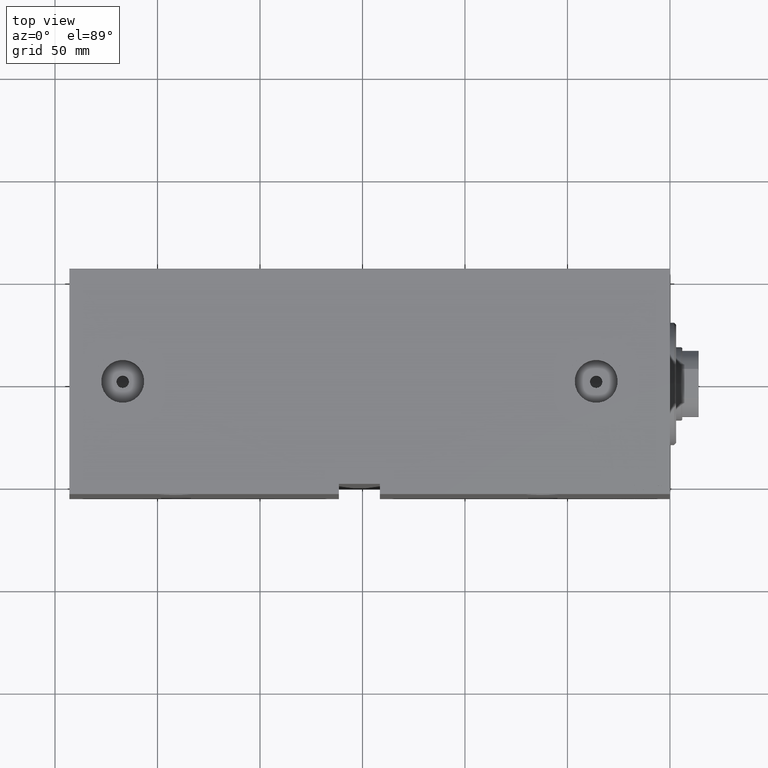
[diagram: clean part render]
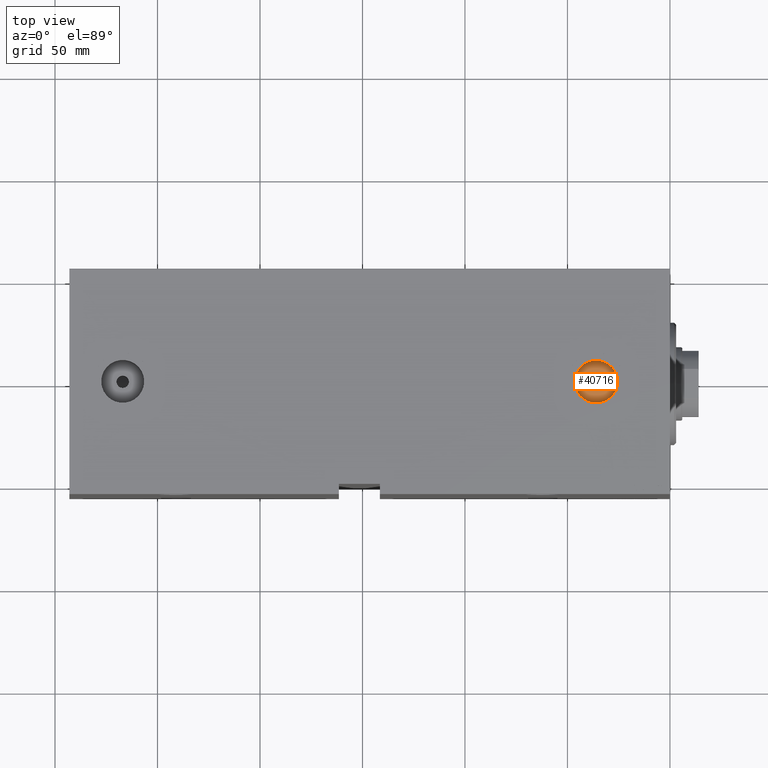
[diagram: same view with one face highlighted and labeled with its STEP entity id]
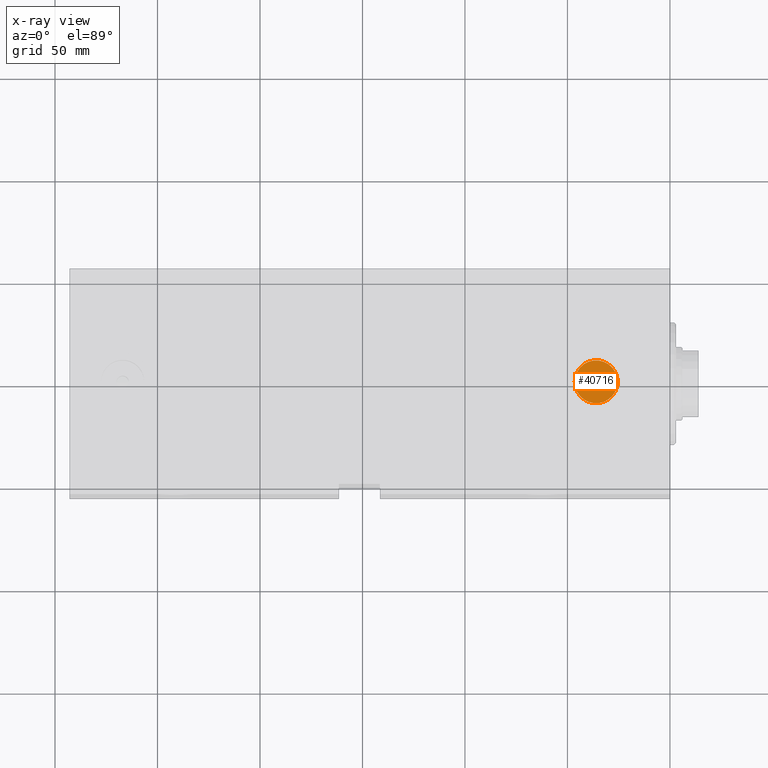
[diagram: x-ray of the same camera — body ghosted, the highlighted face saturated]
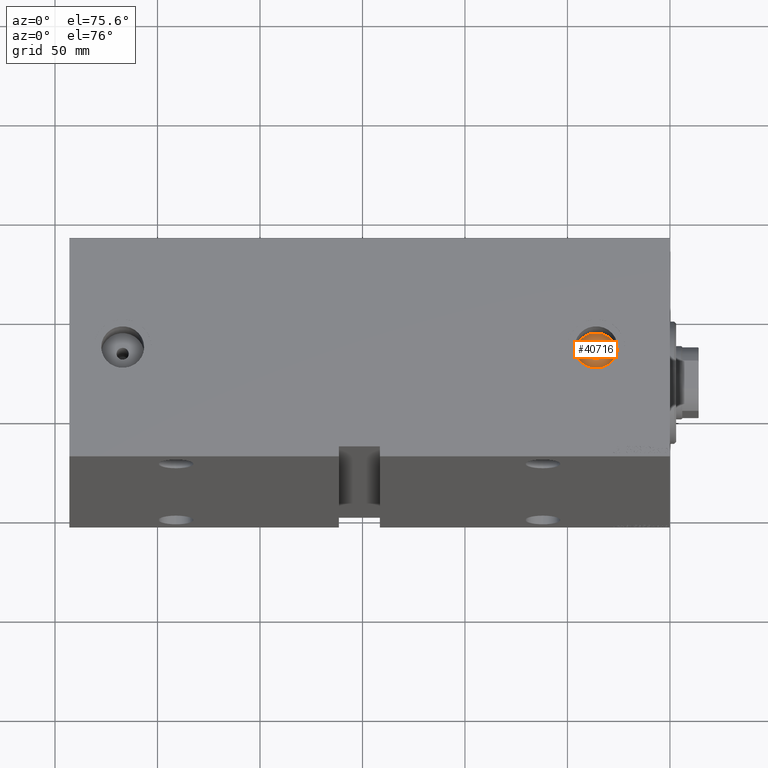
[diagram: same view with one face highlighted and labeled with its STEP entity id]
A machine part, top view. The second image highlights one B-rep face of the part: STEP entity #40716.
The next image is the same camera in x-ray: the body ghosted, the highlighted face saturated — about 0% of this face is hidden behind the body in this view.
A second angle (auxiliary view) of the same face is appended — the face is thin or edge-on in the first view.
In plain terms, the highlighted planar face has unit normal (0, 0, 1).
Its self-contained STEP definition (entity closure, byte-faithful):
#473 = ORIENTED_EDGE ( 'NONE', *, *, #43301, .T. ) ;
#1203 = CARTESIAN_POINT ( 'NONE',  ( 32.99999999999999289, -8.463925474319539907E-15, 56.74000000000000909 ) ) ;
#2376 = DIRECTION ( 'NONE',  ( 1.000000000000000000, 0.000000000000000000, -0.000000000000000000 ) ) ;
#4077 = DIRECTION ( 'NONE',  ( 0.000000000000000000, 0.000000000000000000, 1.000000000000000000 ) ) ;
#4194 = CIRCLE ( 'NONE', #35023, 3.000000000000002665 ) ;
#5919 = CARTESIAN_POINT ( 'NONE',  ( 46.47999999999999687, -8.831319514063746929E-15, 56.74000000000000909 ) ) ;
#6942 = EDGE_LOOP ( 'NONE', ( #17588, #473 ) ) ;
#7555 = VERTEX_POINT ( 'NONE', #15475 ) ;
#10773 = EDGE_LOOP ( 'NONE', ( #31398, #27159 ) ) ;
#11015 = CIRCLE ( 'NONE', #18166, 10.47999999999999687 ) ;
#13907 = CARTESIAN_POINT ( 'NONE',  ( 36.00000000000000000, -8.831319514063746929E-15, 56.74000000000000909 ) ) ;
#13996 = AXIS2_PLACEMENT_3D ( 'NONE', #28451, #24850, #14291 ) ;
#14291 = DIRECTION ( 'NONE',  ( 1.000000000000000000, 0.000000000000000000, 0.000000000000000000 ) ) ;
#15356 = CIRCLE ( 'NONE', #26117, 3.000000000000002665 ) ;
#15475 = CARTESIAN_POINT ( 'NONE',  ( 25.52000000000000313, -7.547889668557321440E-15, 56.74000000000000909 ) ) ;
#16856 = VERTEX_POINT ( 'NONE', #5919 ) ;
#16952 = EDGE_CURVE ( 'NONE', #38970, #36135, #4194, .T. ) ;
#17588 = ORIENTED_EDGE ( 'NONE', *, *, #32417, .T. ) ;
#18166 = AXIS2_PLACEMENT_3D ( 'NONE', #36047, #43216, #18985 ) ;
#18985 = DIRECTION ( 'NONE',  ( 1.000000000000000000, 0.000000000000000000, 0.000000000000000000 ) ) ;
#19434 = FACE_BOUND ( 'NONE', #10773, .T. ) ;
#21092 = DIRECTION ( 'NONE',  ( 1.000000000000000000, 0.000000000000000000, 0.000000000000000000 ) ) ;
#21563 = DIRECTION ( 'NONE',  ( 1.000000000000000000, 0.000000000000000000, 0.000000000000000000 ) ) ;
#22895 = CARTESIAN_POINT ( 'NONE',  ( 39.00000000000000000, -8.831319514063746929E-15, 56.74000000000000909 ) ) ;
#24712 = AXIS2_PLACEMENT_3D ( 'NONE', #25739, #25957, #2376 ) ;
#24850 = DIRECTION ( 'NONE',  ( 0.000000000000000000, 0.000000000000000000, 1.000000000000000000 ) ) ;
#25739 = CARTESIAN_POINT ( 'NONE',  ( 36.00000000000000000, -8.831319514063746929E-15, 56.74000000000000909 ) ) ;
#25957 = DIRECTION ( 'NONE',  ( 0.000000000000000000, 0.000000000000000000, 1.000000000000000000 ) ) ;
#26117 = AXIS2_PLACEMENT_3D ( 'NONE', #42427, #4077, #21563 ) ;
#27159 = ORIENTED_EDGE ( 'NONE', *, *, #16952, .F. ) ;
#27647 = CIRCLE ( 'NONE', #13996, 10.47999999999999687 ) ;
#28050 = DIRECTION ( 'NONE',  ( 0.000000000000000000, 0.000000000000000000, 1.000000000000000000 ) ) ;
#28451 = CARTESIAN_POINT ( 'NONE',  ( 36.00000000000000000, -8.831319514063746929E-15, 56.74000000000000909 ) ) ;
#31398 = ORIENTED_EDGE ( 'NONE', *, *, #39175, .F. ) ;
#32417 = EDGE_CURVE ( 'NONE', #16856, #7555, #11015, .T. ) ;
#35023 = AXIS2_PLACEMENT_3D ( 'NONE', #13907, #28050, #21092 ) ;
#36047 = CARTESIAN_POINT ( 'NONE',  ( 36.00000000000000000, -8.831319514063746929E-15, 56.74000000000000909 ) ) ;
#36135 = VERTEX_POINT ( 'NONE', #22895 ) ;
#38970 = VERTEX_POINT ( 'NONE', #1203 ) ;
#39175 = EDGE_CURVE ( 'NONE', #36135, #38970, #15356, .T. ) ;
#40716 = ADVANCED_FACE ( 'NONE', ( #19434, #43003 ), #42324, .T. ) ;
#42324 = PLANE ( 'NONE',  #24712 ) ;
#42427 = CARTESIAN_POINT ( 'NONE',  ( 36.00000000000000000, -8.831319514063746929E-15, 56.74000000000000909 ) ) ;
#43003 = FACE_OUTER_BOUND ( 'NONE', #6942, .T. ) ;
#43216 = DIRECTION ( 'NONE',  ( 0.000000000000000000, 0.000000000000000000, 1.000000000000000000 ) ) ;
#43301 = EDGE_CURVE ( 'NONE', #7555, #16856, #27647, .T. ) ;